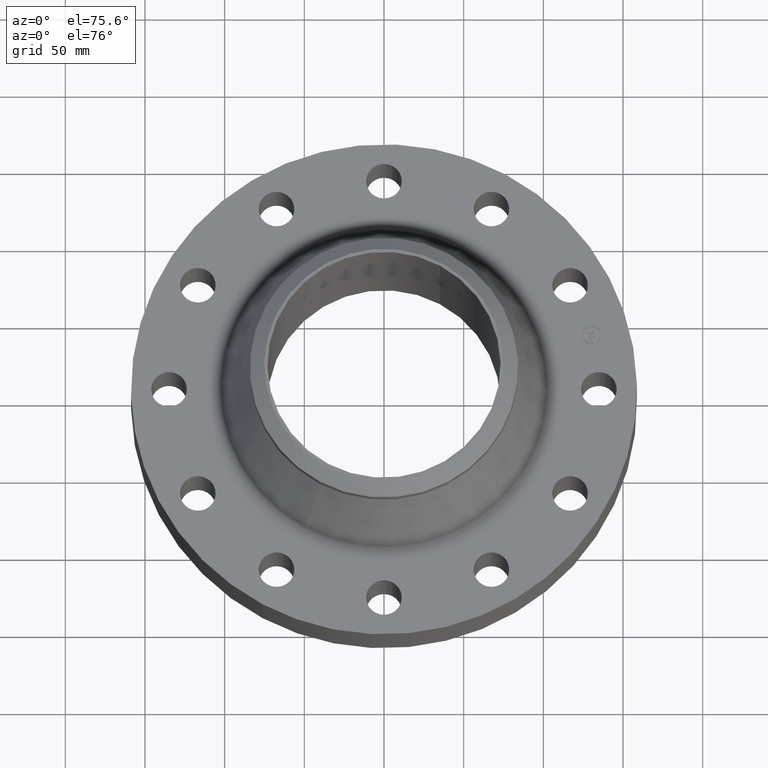
[diagram: clean part render]
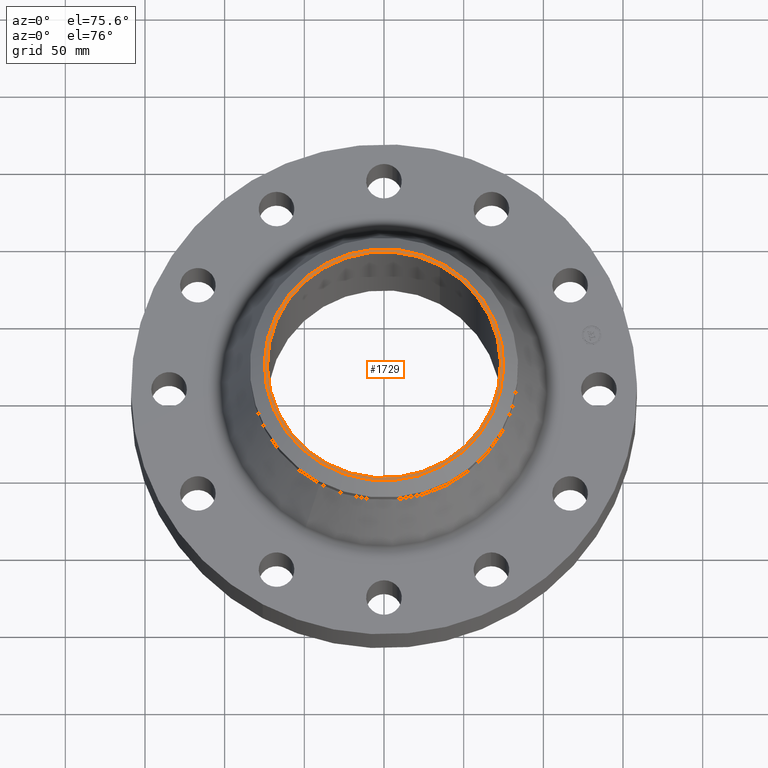
[diagram: same view with one face highlighted and labeled with its STEP entity id]
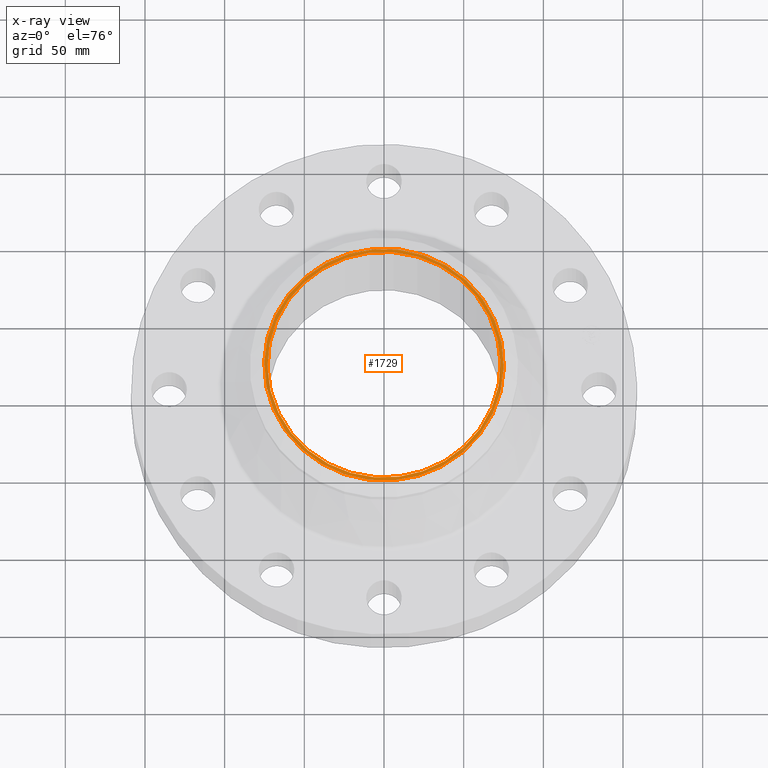
[diagram: x-ray of the same camera — body ghosted, the highlighted face saturated]
A machine part, auxiliary view. The second image highlights one B-rep face of the part: STEP entity #1729.
The next image is the same camera in x-ray: the body ghosted, the highlighted face saturated — about 0% of this face is hidden behind the body in this view.
In plain terms, the highlighted planar face has unit normal (0, 0, -1).
Its self-contained STEP definition (entity closure, byte-faithful):
#1406=AXIS2_PLACEMENT_3D('Circle Axis2P3D',#1404,#1405,$) ;
#1444=AXIS2_PLACEMENT_3D('Circle Axis2P3D',#1442,#1443,$) ;
#1705=AXIS2_PLACEMENT_3D('Plane Axis2P3D',#1702,#1703,#1704) ;
#1709=AXIS2_PLACEMENT_3D('Circle Axis2P3D',#1707,#1708,$) ;
#1718=AXIS2_PLACEMENT_3D('Circle Axis2P3D',#1716,#1717,$) ;
#1404=CARTESIAN_POINT('Axis2P3D Location',(0.,0.,3.82000000003)) ;
#1408=CARTESIAN_POINT('Vertex',(1.38098526395,2.52787656954,3.82000000003)) ;
#1410=CARTESIAN_POINT('Vertex',(-1.38098526396,-2.52787656953,3.82000000003)) ;
#1442=CARTESIAN_POINT('Axis2P3D Location',(0.,0.,3.82000000002)) ;
#1702=CARTESIAN_POINT('Axis2P3D Location',(0.,3.31500000001,3.82000000002)) ;
#1707=CARTESIAN_POINT('Axis2P3D Location',(-1.28115191247E-011,-1.07840245919E-011,3.82000000002)) ;
#1711=CARTESIAN_POINT('Vertex',(1.41873530636,-2.59697755866,3.82000000002)) ;
#1713=CARTESIAN_POINT('Vertex',(-1.41873530636,2.59697755866,3.82000000002)) ;
#1716=CARTESIAN_POINT('Axis2P3D Location',(1.28115191247E-011,3.21198885512E-012,3.82000000002)) ;
#1405=DIRECTION('Axis2P3D Direction',(0.,0.,-0.0393700787402)) ;
#1443=DIRECTION('Axis2P3D Direction',(0.,0.,-0.0393700787402)) ;
#1703=DIRECTION('Axis2P3D Direction',(0.,0.,-0.0393700787402)) ;
#1704=DIRECTION('Axis2P3D XDirection',(0.0393700787402,0.,0.)) ;
#1708=DIRECTION('Axis2P3D Direction',(0.,0.,-0.0393700787402)) ;
#1717=DIRECTION('Axis2P3D Direction',(0.,0.,-0.0393700787402)) ;
#1722=ORIENTED_EDGE('',*,*,#1715,.T.) ;
#1723=ORIENTED_EDGE('',*,*,#1720,.T.) ;
#1726=ORIENTED_EDGE('',*,*,#1446,.T.) ;
#1727=ORIENTED_EDGE('',*,*,#1412,.T.) ;
#1728=FACE_BOUND('',#1725,.T.) ;
#1729=ADVANCED_FACE('PartBody',(#1724,#1728),#1706,.F.) ;
#1407=CIRCLE('generated circle',#1406,2.88050000001) ;
#1445=CIRCLE('generated circle',#1444,2.88050000001) ;
#1710=CIRCLE('generated circle',#1709,2.95924015749) ;
#1719=CIRCLE('generated circle',#1718,2.95924015749) ;
#1412=EDGE_CURVE('',#1409,#1411,#1407,.T.) ;
#1446=EDGE_CURVE('',#1411,#1409,#1445,.T.) ;
#1715=EDGE_CURVE('',#1712,#1714,#1710,.F.) ;
#1720=EDGE_CURVE('',#1714,#1712,#1719,.F.) ;
#1721=EDGE_LOOP('',(#1722,#1723)) ;
#1725=EDGE_LOOP('',(#1726,#1727)) ;
#1724=FACE_OUTER_BOUND('',#1721,.T.) ;
#1706=PLANE('',#1705) ;
#1409=VERTEX_POINT('',#1408) ;
#1411=VERTEX_POINT('',#1410) ;
#1712=VERTEX_POINT('',#1711) ;
#1714=VERTEX_POINT('',#1713) ;